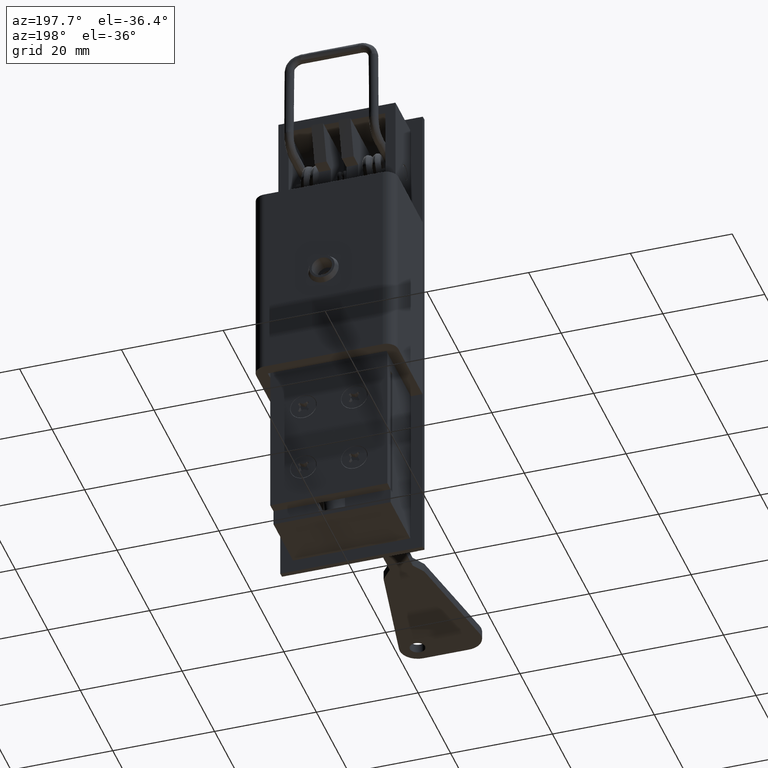
[diagram: clean part render]
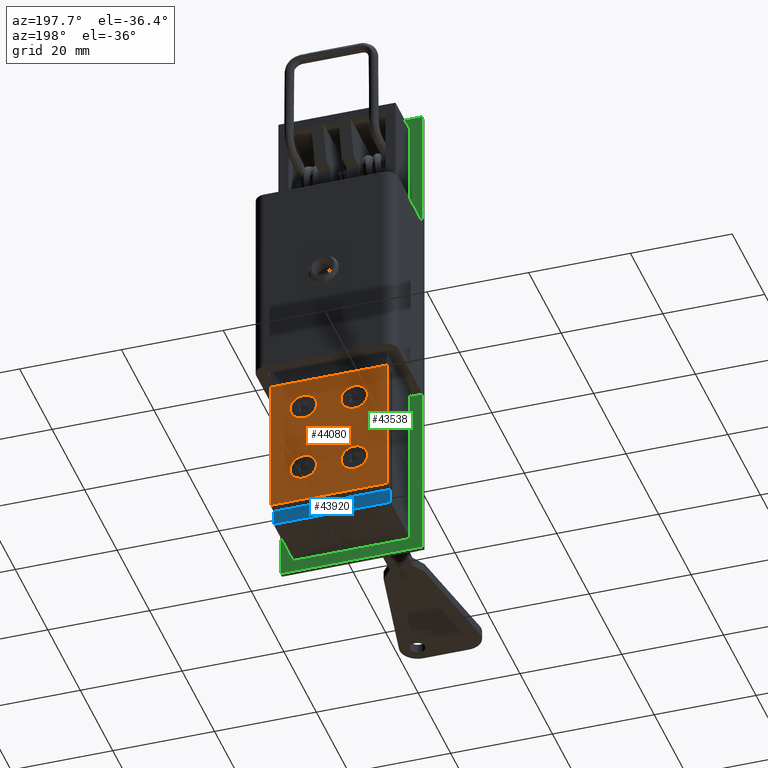
[diagram: same view with three faces highlighted in distinct colors, each labeled with its STEP entity id]
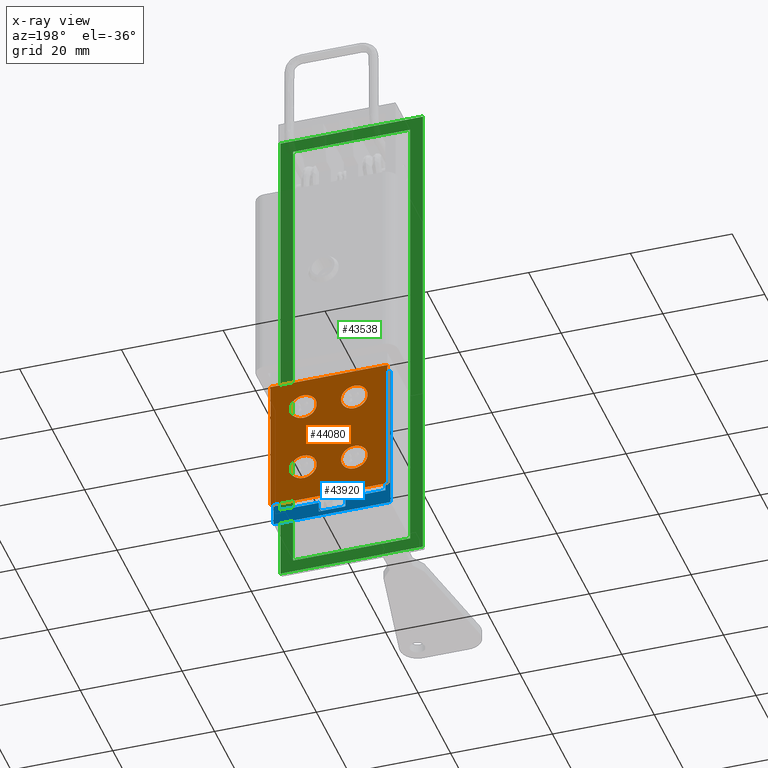
[diagram: x-ray of the same camera — body ghosted, the three highlighted faces saturated]
A machine part, auxiliary view with three faces highlighted in distinct colors.
The next image is the same camera in x-ray (body ghosted, the three faces saturated) — at least one of them is partly hidden behind the body in this view.
Their STEP definitions:

[orange] entity #44080 — the highlighted face is a freeform B-spline surface patch.
#36543=CARTESIAN_POINT('',(15.000000249722040,2.416979966058556,12.703337223752751));
#36544=VERTEX_POINT('',#36543);
#36550=CARTESIAN_POINT('',(15.0,5.0,10.400000000000000));
#36551=VERTEX_POINT('',#36550);
#36552=CARTESIAN_POINT('',(15.000000249722037,2.416979966058556,12.703337223752751));
#36553=CARTESIAN_POINT('',(15.000000000000004,2.681521106169763,10.400000000000000));
#36554=CARTESIAN_POINT('',(15.0,5.0,10.400000000000000));
#36562=(BOUNDED_CURVE()B_SPLINE_CURVE(2,(#36552,#36553,#36554),.UNSPECIFIED.,.F.,.U.)B_SPLINE_CURVE_WITH_KNOTS((3,3),(0.269767822668238,0.500000000000000),.UNSPECIFIED.)CURVE()GEOMETRIC_REPRESENTATION_ITEM()RATIONAL_B_SPLINE_CURVE((0.957343604707814,0.730266226027482,1.0))REPRESENTATION_ITEM(''));
#36563=EDGE_CURVE('',#36544,#36551,#36562,.T.);
#36565=CARTESIAN_POINT('',(15.000000085732371,7.595150537697485,12.841273403310559));
#36566=VERTEX_POINT('',#36565);
#36567=CARTESIAN_POINT('',(15.0,5.0,10.400000000000000));
#36568=CARTESIAN_POINT('',(15.000000000000004,7.445835039980431,10.400000000000000));
#36569=CARTESIAN_POINT('',(15.000000085732367,7.595150537697485,12.841273403310563));
#36577=(BOUNDED_CURVE()B_SPLINE_CURVE(2,(#36567,#36568,#36569),.UNSPECIFIED.,.F.,.U.)B_SPLINE_CURVE_WITH_KNOTS((3,3),(0.500000000000000,0.739332910558729),.UNSPECIFIED.)CURVE()GEOMETRIC_REPRESENTATION_ITEM()RATIONAL_B_SPLINE_CURVE((1.0,0.719604053833847,0.976071930906208))REPRESENTATION_ITEM(''));
#36578=EDGE_CURVE('',#36551,#36566,#36577,.T.);
#36677=CARTESIAN_POINT('',(15.0,5.0,15.600000000000000));
#36678=VERTEX_POINT('',#36677);
#36679=CARTESIAN_POINT('',(15.000000085732365,7.595150537697487,12.841273403310566));
#36680=CARTESIAN_POINT('',(15.0,7.600000000000001,12.920562425668907));
#36681=CARTESIAN_POINT('',(15.0,7.600000000000000,13.0));
#36682=CARTESIAN_POINT('',(14.999999999999995,7.600000000000000,15.599999999999996));
#36683=CARTESIAN_POINT('',(15.0,5.0,15.600000000000000));
#36691=(BOUNDED_CURVE()B_SPLINE_CURVE(2,(#36679,#36680,#36681,#36682,#36683),.UNSPECIFIED.,.F.,.U.)B_SPLINE_CURVE_WITH_KNOTS((3,2,3),(0.739332910558730,0.750000000000000,1.0),.UNSPECIFIED.)CURVE()GEOMETRIC_REPRESENTATION_ITEM()RATIONAL_B_SPLINE_CURVE((0.976071930906208,0.987502727352701,1.0,0.707106781186548,1.0))REPRESENTATION_ITEM(''));
#36692=EDGE_CURVE('',#36566,#36678,#36691,.T.);
#36694=CARTESIAN_POINT('',(15.0,5.0,15.600000000000000));
#36695=CARTESIAN_POINT('',(14.999999999999995,2.400000000000001,15.599999999999996));
#36696=CARTESIAN_POINT('',(15.0,2.400000000000000,13.0));
#36697=CARTESIAN_POINT('',(15.000000000000004,2.400000000000001,12.851182674188241));
#36698=CARTESIAN_POINT('',(15.000000249722035,2.416979966058557,12.703337223752751));
#36706=(BOUNDED_CURVE()B_SPLINE_CURVE(2,(#36694,#36695,#36696,#36697,#36698),.UNSPECIFIED.,.F.,.U.)B_SPLINE_CURVE_WITH_KNOTS((3,2,3),(0.0,0.250000000000000,0.269767822668238),.UNSPECIFIED.)CURVE()GEOMETRIC_REPRESENTATION_ITEM()RATIONAL_B_SPLINE_CURVE((1.0,0.707106781186548,1.0,0.976840555159065,0.957343604707814))REPRESENTATION_ITEM(''));
#36707=EDGE_CURVE('',#36678,#36544,#36706,.T.);
#37017=CARTESIAN_POINT('',(15.000000249722040,2.416979966058556,26.703337223752751));
#37018=VERTEX_POINT('',#37017);
#37024=CARTESIAN_POINT('',(15.0,5.0,24.399999999999999));
#37025=VERTEX_POINT('',#37024);
#37026=CARTESIAN_POINT('',(15.000000249722037,2.416979966058556,26.703337223752751));
#37027=CARTESIAN_POINT('',(15.000000000000004,2.681521106169763,24.399999999999999));
#37028=CARTESIAN_POINT('',(15.0,5.0,24.399999999999999));
#37036=(BOUNDED_CURVE()B_SPLINE_CURVE(2,(#37026,#37027,#37028),.UNSPECIFIED.,.F.,.U.)B_SPLINE_CURVE_WITH_KNOTS((3,3),(0.269767822668238,0.500000000000000),.UNSPECIFIED.)CURVE()GEOMETRIC_REPRESENTATION_ITEM()RATIONAL_B_SPLINE_CURVE((0.957343604707814,0.730266226027482,1.0))REPRESENTATION_ITEM(''));
#37037=EDGE_CURVE('',#37018,#37025,#37036,.T.);
#37039=CARTESIAN_POINT('',(15.000000085732371,7.595150537697485,26.841273403310559));
#37040=VERTEX_POINT('',#37039);
#37041=CARTESIAN_POINT('',(15.0,5.0,24.399999999999999));
#37042=CARTESIAN_POINT('',(15.000000000000004,7.445835039980431,24.399999999999991));
#37043=CARTESIAN_POINT('',(15.000000085732367,7.595150537697485,26.841273403310559));
#37051=(BOUNDED_CURVE()B_SPLINE_CURVE(2,(#37041,#37042,#37043),.UNSPECIFIED.,.F.,.U.)B_SPLINE_CURVE_WITH_KNOTS((3,3),(0.500000000000000,0.739332910558729),.UNSPECIFIED.)CURVE()GEOMETRIC_REPRESENTATION_ITEM()RATIONAL_B_SPLINE_CURVE((1.0,0.719604053833847,0.976071930906208))REPRESENTATION_ITEM(''));
#37052=EDGE_CURVE('',#37025,#37040,#37051,.T.);
#37151=CARTESIAN_POINT('',(15.0,5.0,29.600000000000001));
#37152=VERTEX_POINT('',#37151);
#37153=CARTESIAN_POINT('',(15.000000085732369,7.595150537697485,26.841273403310563));
#37154=CARTESIAN_POINT('',(15.000000000000002,7.600000000000000,26.920562425668912));
#37155=CARTESIAN_POINT('',(15.0,7.600000000000000,27.0));
#37156=CARTESIAN_POINT('',(14.999999999999995,7.600000000000000,29.600000000000005));
#37157=CARTESIAN_POINT('',(15.0,5.0,29.600000000000001));
#37165=(BOUNDED_CURVE()B_SPLINE_CURVE(2,(#37153,#37154,#37155,#37156,#37157),.UNSPECIFIED.,.F.,.U.)B_SPLINE_CURVE_WITH_KNOTS((3,2,3),(0.739332910558730,0.750000000000000,1.0),.UNSPECIFIED.)CURVE()GEOMETRIC_REPRESENTATION_ITEM()RATIONAL_B_SPLINE_CURVE((0.976071930906208,0.987502727352701,1.0,0.707106781186548,1.0))REPRESENTATION_ITEM(''));
#37166=EDGE_CURVE('',#37040,#37152,#37165,.T.);
#37168=CARTESIAN_POINT('',(15.0,5.0,29.600000000000001));
#37169=CARTESIAN_POINT('',(14.999999999999995,2.400000000000001,29.600000000000005));
#37170=CARTESIAN_POINT('',(15.0,2.400000000000000,27.0));
#37171=CARTESIAN_POINT('',(15.000000000000005,2.400000000000000,26.851182674188244));
#37172=CARTESIAN_POINT('',(15.000000249722039,2.416979966058556,26.703337223752744));
#37180=(BOUNDED_CURVE()B_SPLINE_CURVE(2,(#37168,#37169,#37170,#37171,#37172),.UNSPECIFIED.,.F.,.U.)B_SPLINE_CURVE_WITH_KNOTS((3,2,3),(0.0,0.250000000000000,0.269767822668238),.UNSPECIFIED.)CURVE()GEOMETRIC_REPRESENTATION_ITEM()RATIONAL_B_SPLINE_CURVE((1.0,0.707106781186548,1.0,0.976840555159065,0.957343604707814))REPRESENTATION_ITEM(''));
#37181=EDGE_CURVE('',#37152,#37018,#37180,.T.);
#37512=CARTESIAN_POINT('',(15.000000000023901,-3.601587936636554,10.808095873181530));
#37513=VERTEX_POINT('',#37512);
#37519=CARTESIAN_POINT('',(15.0,-5.0,15.600000000000000));
#37520=VERTEX_POINT('',#37519);
#37521=CARTESIAN_POINT('',(15.0,-5.0,15.600000000000000));
#37522=CARTESIAN_POINT('',(14.999999999999995,-2.400000000000001,15.599999999999996));
#37523=CARTESIAN_POINT('',(15.0,-2.400000000000000,13.0));
#37524=CARTESIAN_POINT('',(14.999999999999998,-2.400000000000001,11.574696494964099));
#37525=CARTESIAN_POINT('',(15.000000000023897,-3.601587936636554,10.808095873181529));
#37533=(BOUNDED_CURVE()B_SPLINE_CURVE(2,(#37521,#37522,#37523,#37524,#37525),.UNSPECIFIED.,.F.,.U.)B_SPLINE_CURVE_WITH_KNOTS((3,2,3),(0.0,0.250000000000000,0.407950112573171),.UNSPECIFIED.)CURVE()GEOMETRIC_REPRESENTATION_ITEM()RATIONAL_B_SPLINE_CURVE((1.0,0.707106781186548,1.0,0.814949932465987,0.863729296921336))REPRESENTATION_ITEM(''));
#37534=EDGE_CURVE('',#37520,#37513,#37533,.T.);
#37536=CARTESIAN_POINT('',(15.000000000162149,-7.591985067770061,12.796006349853220));
#37537=VERTEX_POINT('',#37536);
#37538=CARTESIAN_POINT('',(15.000000000162153,-7.591985067770061,12.796006349853215));
#37539=CARTESIAN_POINT('',(15.000000000000002,-7.600000000000000,12.897845720532633));
#37540=CARTESIAN_POINT('',(15.0,-7.600000000000000,13.0));
#37541=CARTESIAN_POINT('',(14.999999999999995,-7.600000000000000,15.599999999999996));
#37542=CARTESIAN_POINT('',(15.0,-5.0,15.600000000000000));
#37550=(BOUNDED_CURVE()B_SPLINE_CURVE(2,(#37538,#37539,#37540,#37541,#37542),.UNSPECIFIED.,.F.,.U.)B_SPLINE_CURVE_WITH_KNOTS((3,2,3),(0.736331300468529,0.750000000000000,1.0),.UNSPECIFIED.)CURVE()GEOMETRIC_REPRESENTATION_ITEM()RATIONAL_B_SPLINE_CURVE((0.969723355829063,0.983986122388934,1.0,0.707106781186548,1.0))REPRESENTATION_ITEM(''));
#37551=EDGE_CURVE('',#37537,#37520,#37550,.T.);
#37655=CARTESIAN_POINT('',(15.0,-5.0,10.400000000000000));
#37656=VERTEX_POINT('',#37655);
#37657=CARTESIAN_POINT('',(15.0,-5.0,10.400000000000000));
#37658=CARTESIAN_POINT('',(15.0,-7.403415276001554,10.399999999999999));
#37659=CARTESIAN_POINT('',(15.000000000162151,-7.591985067770061,12.796006349853222));
#37667=(BOUNDED_CURVE()B_SPLINE_CURVE(2,(#37657,#37658,#37659),.UNSPECIFIED.,.F.,.U.)B_SPLINE_CURVE_WITH_KNOTS((3,3),(0.500000000000000,0.736331300468529),.UNSPECIFIED.)CURVE()GEOMETRIC_REPRESENTATION_ITEM()RATIONAL_B_SPLINE_CURVE((1.0,0.723120658797614,0.969723355829063))REPRESENTATION_ITEM(''));
#37668=EDGE_CURVE('',#37656,#37537,#37667,.T.);
#37670=CARTESIAN_POINT('',(15.000000000023897,-3.601587936636554,10.808095873181529));
#37671=CARTESIAN_POINT('',(15.0,-4.241247055511304,10.400000000000000));
#37672=CARTESIAN_POINT('',(15.0,-5.0,10.400000000000000));
#37680=(BOUNDED_CURVE()B_SPLINE_CURVE(2,(#37670,#37671,#37672),.UNSPECIFIED.,.F.,.U.)B_SPLINE_CURVE_WITH_KNOTS((3,3),(0.407950112573171,0.500000000000000),.UNSPECIFIED.)CURVE()GEOMETRIC_REPRESENTATION_ITEM()RATIONAL_B_SPLINE_CURVE((0.863729296921336,0.892156848720560,1.0))REPRESENTATION_ITEM(''));
#37681=EDGE_CURVE('',#37513,#37656,#37680,.T.);
#38014=CARTESIAN_POINT('',(15.000000000023901,-3.601587936636554,24.808095873181529));
#38015=VERTEX_POINT('',#38014);
#38021=CARTESIAN_POINT('',(15.0,-5.0,29.600000000000001));
#38022=VERTEX_POINT('',#38021);
#38023=CARTESIAN_POINT('',(15.0,-5.0,29.600000000000001));
#38024=CARTESIAN_POINT('',(14.999999999999995,-2.400000000000001,29.600000000000005));
#38025=CARTESIAN_POINT('',(15.0,-2.400000000000000,27.0));
#38026=CARTESIAN_POINT('',(14.999999999999998,-2.400000000000001,25.574696494964101));
#38027=CARTESIAN_POINT('',(15.000000000023897,-3.601587936636554,24.808095873181532));
#38035=(BOUNDED_CURVE()B_SPLINE_CURVE(2,(#38023,#38024,#38025,#38026,#38027),.UNSPECIFIED.,.F.,.U.)B_SPLINE_CURVE_WITH_KNOTS((3,2,3),(0.0,0.250000000000000,0.407950112573171),.UNSPECIFIED.)CURVE()GEOMETRIC_REPRESENTATION_ITEM()RATIONAL_B_SPLINE_CURVE((1.0,0.707106781186548,1.0,0.814949932465987,0.863729296921336))REPRESENTATION_ITEM(''));
#38036=EDGE_CURVE('',#38022,#38015,#38035,.T.);
#38038=CARTESIAN_POINT('',(15.000000000162149,-7.591985067770061,26.796006349853219));
#38039=VERTEX_POINT('',#38038);
#38040=CARTESIAN_POINT('',(15.000000000162153,-7.591985067770061,26.796006349853219));
#38041=CARTESIAN_POINT('',(15.000000000000002,-7.600000000000000,26.897845720532629));
#38042=CARTESIAN_POINT('',(15.0,-7.600000000000000,27.0));
#38043=CARTESIAN_POINT('',(14.999999999999995,-7.600000000000000,29.600000000000005));
#38044=CARTESIAN_POINT('',(15.0,-5.0,29.600000000000001));
#38052=(BOUNDED_CURVE()B_SPLINE_CURVE(2,(#38040,#38041,#38042,#38043,#38044),.UNSPECIFIED.,.F.,.U.)B_SPLINE_CURVE_WITH_KNOTS((3,2,3),(0.736331300468529,0.750000000000000,1.0),.UNSPECIFIED.)CURVE()GEOMETRIC_REPRESENTATION_ITEM()RATIONAL_B_SPLINE_CURVE((0.969723355829063,0.983986122388934,1.0,0.707106781186548,1.0))REPRESENTATION_ITEM(''));
#38053=EDGE_CURVE('',#38039,#38022,#38052,.T.);
#38157=CARTESIAN_POINT('',(15.0,-5.0,24.399999999999999));
#38158=VERTEX_POINT('',#38157);
#38159=CARTESIAN_POINT('',(15.0,-5.0,24.399999999999999));
#38160=CARTESIAN_POINT('',(15.0,-7.403415276001554,24.399999999999999));
#38161=CARTESIAN_POINT('',(15.000000000162151,-7.591985067770061,26.796006349853219));
#38169=(BOUNDED_CURVE()B_SPLINE_CURVE(2,(#38159,#38160,#38161),.UNSPECIFIED.,.F.,.U.)B_SPLINE_CURVE_WITH_KNOTS((3,3),(0.500000000000000,0.736331300468529),.UNSPECIFIED.)CURVE()GEOMETRIC_REPRESENTATION_ITEM()RATIONAL_B_SPLINE_CURVE((1.0,0.723120658797614,0.969723355829063))REPRESENTATION_ITEM(''));
#38170=EDGE_CURVE('',#38158,#38039,#38169,.T.);
#38172=CARTESIAN_POINT('',(15.000000000023897,-3.601587936636554,24.808095873181532));
#38173=CARTESIAN_POINT('',(15.0,-4.241247055511304,24.399999999999999));
#38174=CARTESIAN_POINT('',(15.0,-5.0,24.399999999999999));
#38182=(BOUNDED_CURVE()B_SPLINE_CURVE(2,(#38172,#38173,#38174),.UNSPECIFIED.,.F.,.U.)B_SPLINE_CURVE_WITH_KNOTS((3,3),(0.407950112573171,0.500000000000000),.UNSPECIFIED.)CURVE()GEOMETRIC_REPRESENTATION_ITEM()RATIONAL_B_SPLINE_CURVE((0.863729296921336,0.892156848720560,1.0))REPRESENTATION_ITEM(''));
#38183=EDGE_CURVE('',#38015,#38158,#38182,.T.);
#38300=CARTESIAN_POINT('',(15.0,-1.102240574188618,20.131018001100411));
#38301=VERTEX_POINT('',#38300);
#38307=CARTESIAN_POINT('',(15.0,0.0,18.890000000000001));
#38308=VERTEX_POINT('',#38307);
#38309=CARTESIAN_POINT('',(15.0,-1.102240574188617,20.131018001100411));
#38310=CARTESIAN_POINT('',(15.000000000000002,-1.110000000000000,20.065738773451702));
#38311=CARTESIAN_POINT('',(15.0,-1.110000000000000,20.0));
#38312=CARTESIAN_POINT('',(14.999999999999996,-1.110000000000000,18.889999999999997));
#38313=CARTESIAN_POINT('',(15.0,0.0,18.890000000000001));
#38321=(BOUNDED_CURVE()B_SPLINE_CURVE(2,(#38309,#38310,#38311,#38312,#38313),.UNSPECIFIED.,.F.,.U.)B_SPLINE_CURVE_WITH_KNOTS((3,2,3),(0.229562473322021,0.250000000000000,0.500000000000000),.UNSPECIFIED.)CURVE()GEOMETRIC_REPRESENTATION_ITEM()RATIONAL_B_SPLINE_CURVE((0.956026753808377,0.976055948106804,1.0,0.707106781186547,1.0))REPRESENTATION_ITEM(''));
#38322=EDGE_CURVE('',#38301,#38308,#38321,.T.);
#38324=CARTESIAN_POINT('',(15.0,1.107929626197694,19.932236120289360));
#38325=VERTEX_POINT('',#38324);
#38326=CARTESIAN_POINT('',(15.0,0.0,18.890000000000001));
#38327=CARTESIAN_POINT('',(15.000000000000005,1.044183732703668,18.890000000000004));
#38328=CARTESIAN_POINT('',(15.000000000000002,1.107929626197694,19.932236120289360));
#38336=(BOUNDED_CURVE()B_SPLINE_CURVE(2,(#38326,#38327,#38328),.UNSPECIFIED.,.F.,.U.)B_SPLINE_CURVE_WITH_KNOTS((3,3),(0.500000000000000,0.739332961984393),.UNSPECIFIED.)CURVE()GEOMETRIC_REPRESENTATION_ITEM()RATIONAL_B_SPLINE_CURVE((1.0,0.719603993584934,0.976072041121169))REPRESENTATION_ITEM(''));
#38337=EDGE_CURVE('',#38308,#38325,#38336,.T.);
#38411=CARTESIAN_POINT('',(15.0,0.0,21.109999999999999));
#38412=VERTEX_POINT('',#38411);
#38413=CARTESIAN_POINT('',(15.000000000000002,1.107929626197695,19.932236120289367));
#38414=CARTESIAN_POINT('',(15.000000000000007,1.110000000000000,19.966086431909293));
#38415=CARTESIAN_POINT('',(15.0,1.110000000000000,20.0));
#38416=CARTESIAN_POINT('',(14.999999999999996,1.110000000000000,21.110000000000003));
#38417=CARTESIAN_POINT('',(15.0,0.0,21.109999999999999));
#38425=(BOUNDED_CURVE()B_SPLINE_CURVE(2,(#38413,#38414,#38415,#38416,#38417),.UNSPECIFIED.,.F.,.U.)B_SPLINE_CURVE_WITH_KNOTS((3,2,3),(0.739332961984394,0.750000000000000,1.0),.UNSPECIFIED.)CURVE()GEOMETRIC_REPRESENTATION_ITEM()RATIONAL_B_SPLINE_CURVE((0.976072041121171,0.987502787601615,1.0,0.707106781186547,1.0))REPRESENTATION_ITEM(''));
#38426=EDGE_CURVE('',#38325,#38412,#38425,.T.);
#38428=CARTESIAN_POINT('',(15.0,0.0,21.109999999999999));
#38429=CARTESIAN_POINT('',(15.0,-0.985873722668575,21.109999999999996));
#38430=CARTESIAN_POINT('',(14.999999999999996,-1.102240574188617,20.131018001100404));
#38438=(BOUNDED_CURVE()B_SPLINE_CURVE(2,(#38428,#38429,#38430),.UNSPECIFIED.,.F.,.U.)B_SPLINE_CURVE_WITH_KNOTS((3,3),(0.0,0.229562473322021),.UNSPECIFIED.)CURVE()GEOMETRIC_REPRESENTATION_ITEM()RATIONAL_B_SPLINE_CURVE((1.0,0.731050833079743,0.956026753808377))REPRESENTATION_ITEM(''));
#38439=EDGE_CURVE('',#38412,#38301,#38438,.T.);
#42302=CARTESIAN_POINT('',(15.0,-11.500000000000000,32.990000000000002));
#42303=VERTEX_POINT('',#42302);
#42309=CARTESIAN_POINT('',(15.0,11.500000000000000,32.990000000000002));
#42310=VERTEX_POINT('',#42309);
#42311=CARTESIAN_POINT('',(15.0,11.500000000000000,32.990000000000002));
#42312=CARTESIAN_POINT('',(15.0,-11.500000000000000,32.990000000000002));
#42313=QUASI_UNIFORM_CURVE('',1,(#42311,#42312),.UNSPECIFIED.,.F.,.U.);
#42314=EDGE_CURVE('',#42310,#42303,#42313,.T.);
#43782=CARTESIAN_POINT('',(15.0,-11.500000000000000,5.500000000000000));
#43783=VERTEX_POINT('',#43782);
#43784=CARTESIAN_POINT('',(15.0,-11.500000000000000,32.990000000000002));
#43785=CARTESIAN_POINT('',(15.0,-11.500000000000000,5.500000000000000));
#43786=QUASI_UNIFORM_CURVE('',1,(#43784,#43785),.UNSPECIFIED.,.F.,.U.);
#43787=EDGE_CURVE('',#42303,#43783,#43786,.T.);
#43805=CARTESIAN_POINT('',(15.0,11.500000000000000,5.500000000000000));
#43806=VERTEX_POINT('',#43805);
#43807=CARTESIAN_POINT('',(15.0,11.500000000000000,32.990000000000002));
#43808=CARTESIAN_POINT('',(15.0,11.500000000000000,5.500000000000000));
#43809=QUASI_UNIFORM_CURVE('',1,(#43807,#43808),.UNSPECIFIED.,.F.,.U.);
#43810=EDGE_CURVE('',#42310,#43806,#43809,.T.);
#43959=CARTESIAN_POINT('',(15.0,11.500000000000000,5.500000000000000));
#43960=CARTESIAN_POINT('',(15.0,-11.500000000000000,5.500000000000000));
#43961=QUASI_UNIFORM_CURVE('',1,(#43959,#43960),.UNSPECIFIED.,.F.,.U.);
#43962=EDGE_CURVE('',#43806,#43783,#43961,.T.);
#44039=CARTESIAN_POINT('',(15.0,-12.648849955421539,4.126874455067363));
#44040=CARTESIAN_POINT('',(15.0,-12.648849955421539,34.363128248509931));
#44041=CARTESIAN_POINT('',(15.0,12.648850572329611,4.126874455067363));
#44042=CARTESIAN_POINT('',(15.0,12.648850572329611,34.363128248509931));
#44043=B_SPLINE_SURFACE_WITH_KNOTS('',1,1,((#44039,#44041),(#44040,#44042)),.UNSPECIFIED.,.F.,.F.,.U.,(2,2),(2,2),(0.0,30.236253793442572),(0.0,25.297700527751150),.UNSPECIFIED.);
#44044=ORIENTED_EDGE('',*,*,#43810,.F.);
#44045=ORIENTED_EDGE('',*,*,#42314,.T.);
#44046=ORIENTED_EDGE('',*,*,#43787,.T.);
#44047=ORIENTED_EDGE('',*,*,#43962,.F.);
#44048=EDGE_LOOP('',(#44044,#44045,#44046,#44047));
#44049=FACE_OUTER_BOUND('',#44048,.T.);
#44050=ORIENTED_EDGE('',*,*,#38337,.F.);
#44051=ORIENTED_EDGE('',*,*,#38322,.F.);
#44052=ORIENTED_EDGE('',*,*,#38439,.F.);
#44053=ORIENTED_EDGE('',*,*,#38426,.F.);
#44054=EDGE_LOOP('',(#44050,#44051,#44052,#44053));
#44055=FACE_BOUND('',#44054,.T.);
#44056=ORIENTED_EDGE('',*,*,#38170,.T.);
#44057=ORIENTED_EDGE('',*,*,#38053,.T.);
#44058=ORIENTED_EDGE('',*,*,#38036,.T.);
#44059=ORIENTED_EDGE('',*,*,#38183,.T.);
#44060=EDGE_LOOP('',(#44056,#44057,#44058,#44059));
#44061=FACE_BOUND('',#44060,.T.);
#44062=ORIENTED_EDGE('',*,*,#37668,.T.);
#44063=ORIENTED_EDGE('',*,*,#37551,.T.);
#44064=ORIENTED_EDGE('',*,*,#37534,.T.);
#44065=ORIENTED_EDGE('',*,*,#37681,.T.);
#44066=EDGE_LOOP('',(#44062,#44063,#44064,#44065));
#44067=FACE_BOUND('',#44066,.T.);
#44068=ORIENTED_EDGE('',*,*,#37052,.F.);
#44069=ORIENTED_EDGE('',*,*,#37037,.F.);
#44070=ORIENTED_EDGE('',*,*,#37181,.F.);
#44071=ORIENTED_EDGE('',*,*,#37166,.F.);
#44072=EDGE_LOOP('',(#44068,#44069,#44070,#44071));
#44073=FACE_BOUND('',#44072,.T.);
#44074=ORIENTED_EDGE('',*,*,#36578,.F.);
#44075=ORIENTED_EDGE('',*,*,#36563,.F.);
#44076=ORIENTED_EDGE('',*,*,#36707,.F.);
#44077=ORIENTED_EDGE('',*,*,#36692,.F.);
#44078=EDGE_LOOP('',(#44074,#44075,#44076,#44077));
#44079=FACE_BOUND('',#44078,.T.);
#44080=ADVANCED_FACE('',(#44049,#44055,#44061,#44067,#44073,#44079),#44043,.F.);

[blue] entity #43920 — the highlighted face is a freeform B-spline surface patch.
#42378=CARTESIAN_POINT('',(13.0,10.500000000000000,33.0));
#42379=VERTEX_POINT('',#42378);
#42393=CARTESIAN_POINT('',(13.0,10.500000000000000,5.500000000000000));
#42394=VERTEX_POINT('',#42393);
#42400=CARTESIAN_POINT('',(13.0,10.500000000000000,33.0));
#42401=CARTESIAN_POINT('',(13.0,10.500000000000000,5.500000000000000));
#42402=QUASI_UNIFORM_CURVE('',1,(#42400,#42401),.UNSPECIFIED.,.F.,.U.);
#42403=EDGE_CURVE('',#42379,#42394,#42402,.T.);
#42435=CARTESIAN_POINT('',(13.0,-10.500000000000000,33.0));
#42436=VERTEX_POINT('',#42435);
#42442=CARTESIAN_POINT('',(13.0,-10.500000000000000,5.500000000000000));
#42443=VERTEX_POINT('',#42442);
#42444=CARTESIAN_POINT('',(13.0,-10.500000000000000,33.0));
#42445=CARTESIAN_POINT('',(13.0,-10.500000000000000,5.500000000000000));
#42446=QUASI_UNIFORM_CURVE('',1,(#42444,#42445),.UNSPECIFIED.,.F.,.U.);
#42447=EDGE_CURVE('',#42436,#42443,#42446,.T.);
#42494=CARTESIAN_POINT('',(13.0,-11.500000000000000,33.0));
#42495=VERTEX_POINT('',#42494);
#42501=CARTESIAN_POINT('',(13.0,-10.500000000000000,33.0));
#42502=CARTESIAN_POINT('',(13.0,-11.500000000000000,33.0));
#42503=QUASI_UNIFORM_CURVE('',1,(#42501,#42502),.UNSPECIFIED.,.F.,.U.);
#42504=EDGE_CURVE('',#42436,#42495,#42503,.T.);
#42509=CARTESIAN_POINT('',(13.0,11.500000000000000,33.0));
#42510=VERTEX_POINT('',#42509);
#42511=CARTESIAN_POINT('',(13.0,10.500000000000000,33.0));
#42512=CARTESIAN_POINT('',(13.0,11.500000000000000,33.0));
#42513=QUASI_UNIFORM_CURVE('',1,(#42511,#42512),.UNSPECIFIED.,.F.,.U.);
#42514=EDGE_CURVE('',#42379,#42510,#42513,.T.);
#42573=CARTESIAN_POINT('',(13.000000000000121,2.600000000000080,3.500000000000000));
#42574=VERTEX_POINT('',#42573);
#42580=CARTESIAN_POINT('',(13.000000000000121,2.600000000000080,5.500000000000000));
#42581=VERTEX_POINT('',#42580);
#42582=CARTESIAN_POINT('',(13.000000000000121,2.600000000000080,3.500000000000000));
#42583=CARTESIAN_POINT('',(13.000000000000121,2.600000000000080,5.500000000000000));
#42584=QUASI_UNIFORM_CURVE('',1,(#42582,#42583),.UNSPECIFIED.,.F.,.U.);
#42585=EDGE_CURVE('',#42574,#42581,#42584,.T.);
#42606=CARTESIAN_POINT('',(13.000000000000121,-2.599999999999910,3.500000000000000));
#42607=VERTEX_POINT('',#42606);
#42613=CARTESIAN_POINT('',(13.000000000000121,-2.599999999999910,3.500000000000000));
#42614=CARTESIAN_POINT('',(13.000000000000121,2.600000000000080,3.500000000000000));
#42615=QUASI_UNIFORM_CURVE('',1,(#42613,#42614),.UNSPECIFIED.,.F.,.U.);
#42616=EDGE_CURVE('',#42607,#42574,#42615,.T.);
#42627=CARTESIAN_POINT('',(13.000000000000121,-2.599999999999910,5.500000000000000));
#42628=VERTEX_POINT('',#42627);
#42629=CARTESIAN_POINT('',(13.000000000000121,-2.599999999999910,5.500000000000000));
#42630=CARTESIAN_POINT('',(13.000000000000121,-2.599999999999910,3.500000000000000));
#42631=QUASI_UNIFORM_CURVE('',1,(#42629,#42630),.UNSPECIFIED.,.F.,.U.);
#42632=EDGE_CURVE('',#42628,#42607,#42631,.T.);
#43372=CARTESIAN_POINT('',(13.0,-11.500000000000000,2.500000000000000));
#43373=VERTEX_POINT('',#43372);
#43388=CARTESIAN_POINT('',(13.0,11.500000000000000,2.500000000000000));
#43389=VERTEX_POINT('',#43388);
#43395=CARTESIAN_POINT('',(13.0,11.500000000000000,2.500000000000000));
#43396=CARTESIAN_POINT('',(13.0,-11.500000000000000,2.500000000000000));
#43397=QUASI_UNIFORM_CURVE('',1,(#43395,#43396),.UNSPECIFIED.,.F.,.U.);
#43398=EDGE_CURVE('',#43389,#43373,#43397,.T.);
#43885=CARTESIAN_POINT('',(13.0,-12.648849955421539,0.976525059114920));
#43886=CARTESIAN_POINT('',(13.0,-12.648849955421539,34.523475758958817));
#43887=CARTESIAN_POINT('',(13.0,12.648850572329611,0.976525059114920));
#43888=CARTESIAN_POINT('',(13.0,12.648850572329611,34.523475758958817));
#43889=B_SPLINE_SURFACE_WITH_KNOTS('',1,1,((#43885,#43887),(#43886,#43888)),.UNSPECIFIED.,.F.,.F.,.U.,(2,2),(2,2),(0.0,33.546950699843897),(0.0,25.297700527751150),.UNSPECIFIED.);
#43890=CARTESIAN_POINT('',(13.0,11.500000000000000,33.0));
#43891=CARTESIAN_POINT('',(13.0,11.500000000000000,2.500000000000000));
#43892=QUASI_UNIFORM_CURVE('',1,(#43890,#43891),.UNSPECIFIED.,.F.,.U.);
#43893=EDGE_CURVE('',#42510,#43389,#43892,.T.);
#43894=ORIENTED_EDGE('',*,*,#43893,.F.);
#43895=ORIENTED_EDGE('',*,*,#42514,.F.);
#43896=ORIENTED_EDGE('',*,*,#42403,.T.);
#43897=CARTESIAN_POINT('',(13.000000000000121,2.600000000000080,5.500000000000000));
#43898=CARTESIAN_POINT('',(13.0,10.500000000000000,5.500000000000000));
#43899=QUASI_UNIFORM_CURVE('',1,(#43897,#43898),.UNSPECIFIED.,.F.,.U.);
#43900=EDGE_CURVE('',#42581,#42394,#43899,.T.);
#43901=ORIENTED_EDGE('',*,*,#43900,.F.);
#43902=ORIENTED_EDGE('',*,*,#42585,.F.);
#43903=ORIENTED_EDGE('',*,*,#42616,.F.);
#43904=ORIENTED_EDGE('',*,*,#42632,.F.);
#43905=CARTESIAN_POINT('',(13.0,-10.500000000000000,5.500000000000000));
#43906=CARTESIAN_POINT('',(13.000000000000121,-2.599999999999910,5.500000000000000));
#43907=QUASI_UNIFORM_CURVE('',1,(#43905,#43906),.UNSPECIFIED.,.F.,.U.);
#43908=EDGE_CURVE('',#42443,#42628,#43907,.T.);
#43909=ORIENTED_EDGE('',*,*,#43908,.F.);
#43910=ORIENTED_EDGE('',*,*,#42447,.F.);
#43911=ORIENTED_EDGE('',*,*,#42504,.T.);
#43912=CARTESIAN_POINT('',(13.0,-11.500000000000000,33.0));
#43913=CARTESIAN_POINT('',(13.0,-11.500000000000000,2.500000000000000));
#43914=QUASI_UNIFORM_CURVE('',1,(#43912,#43913),.UNSPECIFIED.,.F.,.U.);
#43915=EDGE_CURVE('',#42495,#43373,#43914,.T.);
#43916=ORIENTED_EDGE('',*,*,#43915,.T.);
#43917=ORIENTED_EDGE('',*,*,#43398,.F.);
#43918=EDGE_LOOP('',(#43894,#43895,#43896,#43901,#43902,#43903,#43904,#43909,#43910,#43911,#43916,#43917));
#43919=FACE_OUTER_BOUND('',#43918,.T.);
#43920=ADVANCED_FACE('',(#43919),#43889,.F.);

[green] entity #43538 — the highlighted face is a freeform B-spline surface patch.
#43336=CARTESIAN_POINT('',(1.0,-11.500000000000000,97.500000000000000));
#43337=VERTEX_POINT('',#43336);
#43352=CARTESIAN_POINT('',(1.0,11.500000000000000,97.500000000000000));
#43353=VERTEX_POINT('',#43352);
#43359=CARTESIAN_POINT('',(1.0,11.500000000000000,97.500000000000000));
#43360=CARTESIAN_POINT('',(1.0,-11.500000000000000,97.500000000000000));
#43361=QUASI_UNIFORM_CURVE('',1,(#43359,#43360),.UNSPECIFIED.,.F.,.U.);
#43362=EDGE_CURVE('',#43353,#43337,#43361,.T.);
#43374=CARTESIAN_POINT('',(1.0,-11.500000000000000,2.500000000000000));
#43375=VERTEX_POINT('',#43374);
#43381=CARTESIAN_POINT('',(1.0,11.500000000000000,2.500000000000000));
#43382=VERTEX_POINT('',#43381);
#43383=CARTESIAN_POINT('',(1.0,11.500000000000000,2.500000000000000));
#43384=CARTESIAN_POINT('',(1.0,-11.500000000000000,2.500000000000000));
#43385=QUASI_UNIFORM_CURVE('',1,(#43383,#43384),.UNSPECIFIED.,.F.,.U.);
#43386=EDGE_CURVE('',#43382,#43375,#43385,.T.);
#43489=CARTESIAN_POINT('',(1.0,15.398915456423550,104.994999806180600));
#43490=CARTESIAN_POINT('',(1.0,-15.398615706765741,104.994999806180600));
#43491=CARTESIAN_POINT('',(1.0,15.398915456423550,-4.995002488389611));
#43492=CARTESIAN_POINT('',(1.0,-15.398615706765741,-4.995002488389611));
#43493=B_SPLINE_SURFACE_WITH_KNOTS('',1,1,((#43489,#43491),(#43490,#43492)),.UNSPECIFIED.,.F.,.F.,.U.,(2,2),(2,2),(0.0,30.797531163189291),(0.0,109.990002294570200),.UNSPECIFIED.);
#43494=CARTESIAN_POINT('',(1.0,-14.0,100.0));
#43495=VERTEX_POINT('',#43494);
#43496=CARTESIAN_POINT('',(1.0,14.000299999999999,100.0));
#43497=VERTEX_POINT('',#43496);
#43498=CARTESIAN_POINT('',(1.0,-14.0,100.0));
#43499=CARTESIAN_POINT('',(1.0,14.000299999999999,100.0));
#43500=QUASI_UNIFORM_CURVE('',1,(#43498,#43499),.UNSPECIFIED.,.F.,.U.);
#43501=EDGE_CURVE('',#43495,#43497,#43500,.T.);
#43502=ORIENTED_EDGE('',*,*,#43501,.F.);
#43503=CARTESIAN_POINT('',(1.0,-14.0,2.571673E-015));
#43504=VERTEX_POINT('',#43503);
#43505=CARTESIAN_POINT('',(1.0,-14.0,2.571673E-015));
#43506=CARTESIAN_POINT('',(1.0,-14.0,100.0));
#43507=QUASI_UNIFORM_CURVE('',1,(#43505,#43506),.UNSPECIFIED.,.F.,.U.);
#43508=EDGE_CURVE('',#43504,#43495,#43507,.T.);
#43509=ORIENTED_EDGE('',*,*,#43508,.F.);
#43510=CARTESIAN_POINT('',(1.0,14.000299999999999,-2.571728E-015));
#43511=VERTEX_POINT('',#43510);
#43512=CARTESIAN_POINT('',(1.0,14.000299999999999,-2.571728E-015));
#43513=CARTESIAN_POINT('',(1.0,-14.0,2.571673E-015));
#43514=QUASI_UNIFORM_CURVE('',1,(#43512,#43513),.UNSPECIFIED.,.F.,.U.);
#43515=EDGE_CURVE('',#43511,#43504,#43514,.T.);
#43516=ORIENTED_EDGE('',*,*,#43515,.F.);
#43517=CARTESIAN_POINT('',(1.0,14.000299999999999,100.0));
#43518=CARTESIAN_POINT('',(1.0,14.000299999999999,-2.571728E-015));
#43519=QUASI_UNIFORM_CURVE('',1,(#43517,#43518),.UNSPECIFIED.,.F.,.U.);
#43520=EDGE_CURVE('',#43497,#43511,#43519,.T.);
#43521=ORIENTED_EDGE('',*,*,#43520,.F.);
#43522=EDGE_LOOP('',(#43502,#43509,#43516,#43521));
#43523=FACE_OUTER_BOUND('',#43522,.T.);
#43524=CARTESIAN_POINT('',(1.0,11.500000000000000,2.500000000000000));
#43525=CARTESIAN_POINT('',(1.0,11.500000000000000,97.500000000000000));
#43526=QUASI_UNIFORM_CURVE('',1,(#43524,#43525),.UNSPECIFIED.,.F.,.U.);
#43527=EDGE_CURVE('',#43382,#43353,#43526,.T.);
#43528=ORIENTED_EDGE('',*,*,#43527,.F.);
#43529=ORIENTED_EDGE('',*,*,#43386,.T.);
#43530=CARTESIAN_POINT('',(1.0,-11.500000000000000,2.500000000000000));
#43531=CARTESIAN_POINT('',(1.0,-11.500000000000000,97.500000000000000));
#43532=QUASI_UNIFORM_CURVE('',1,(#43530,#43531),.UNSPECIFIED.,.F.,.U.);
#43533=EDGE_CURVE('',#43375,#43337,#43532,.T.);
#43534=ORIENTED_EDGE('',*,*,#43533,.T.);
#43535=ORIENTED_EDGE('',*,*,#43362,.F.);
#43536=EDGE_LOOP('',(#43528,#43529,#43534,#43535));
#43537=FACE_BOUND('',#43536,.T.);
#43538=ADVANCED_FACE('',(#43523,#43537),#43493,.T.);